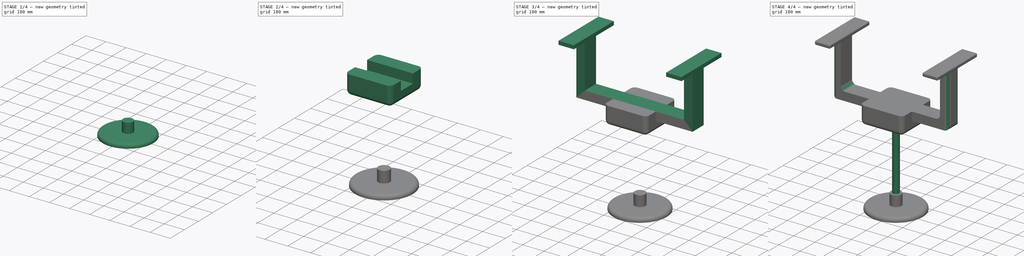
[diagram: build sequence overview — one tinted view per stage of 4, left to right]
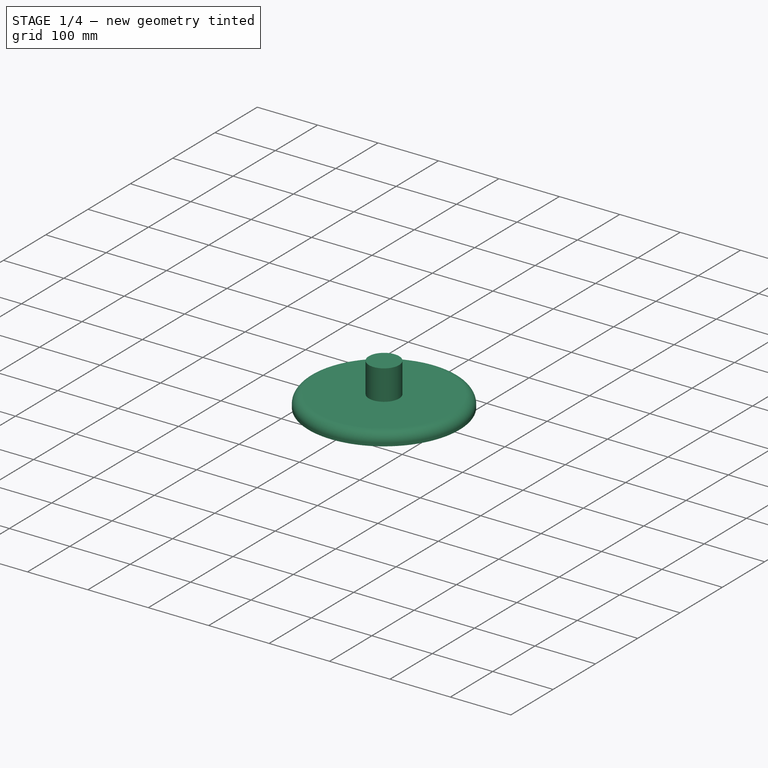
[diagram: stage 1 of 4 — iso view after this stage's code; geometry added in this stage tinted green]
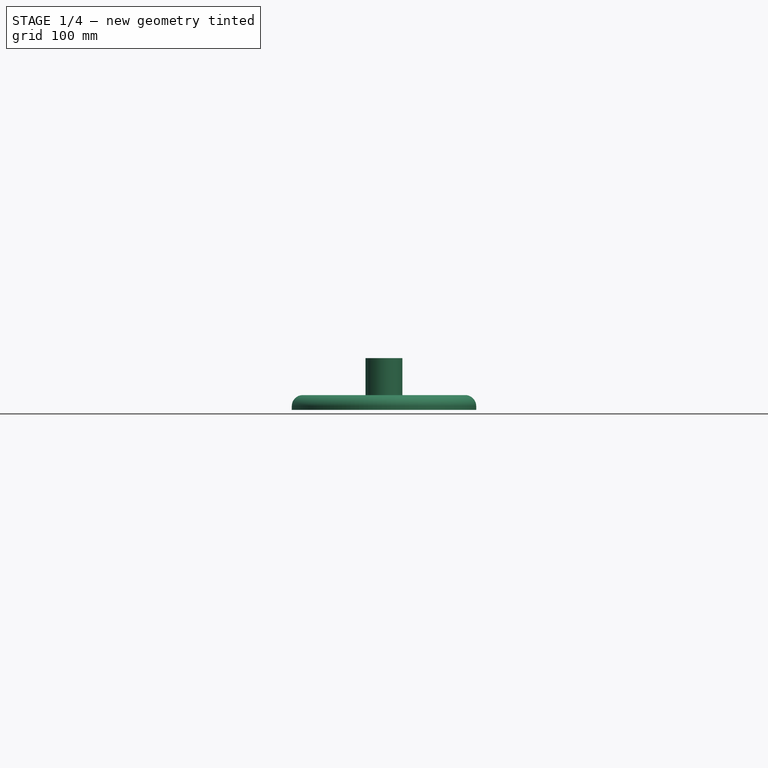
[diagram: stage 1 of 4 — front view after this stage's code; geometry added in this stage tinted green]
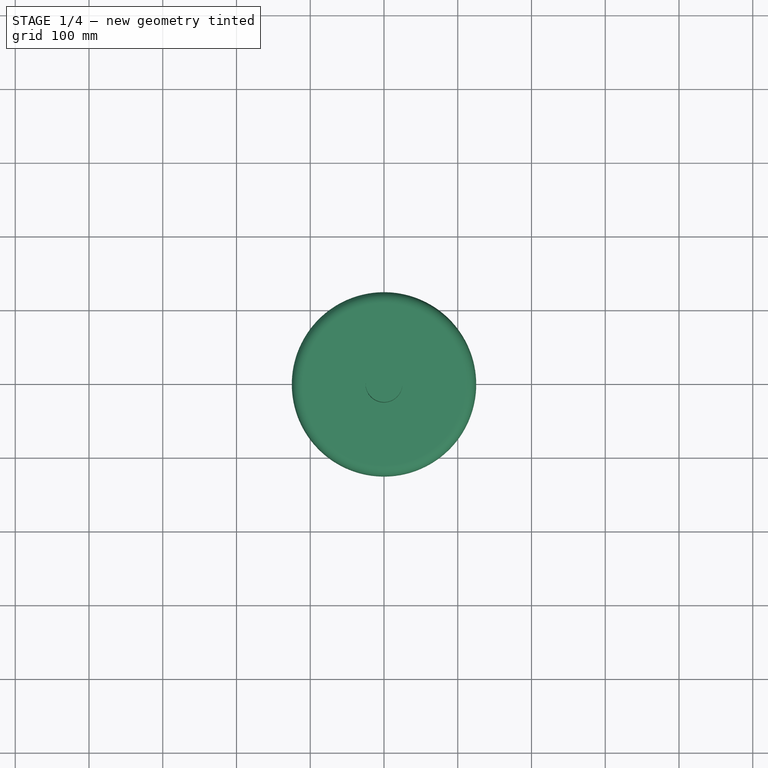
[diagram: stage 1 of 4 — top view after this stage's code; geometry added in this stage tinted green]
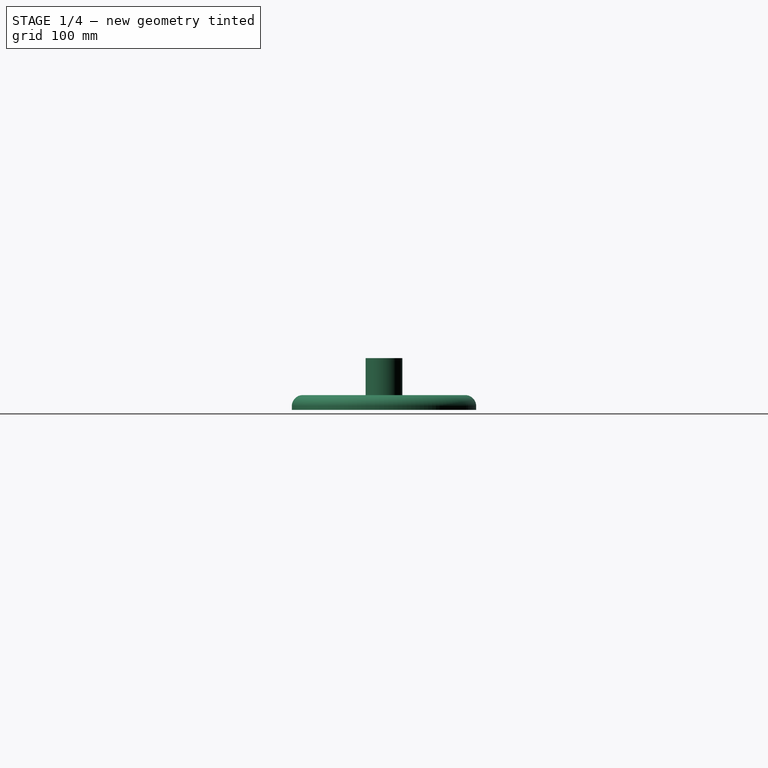
[diagram: stage 1 of 4 — right view after this stage's code; geometry added in this stage tinted green]
FCSTD DOCUMENT  (FreeCAD 1.0R39109 (Git))
Label: chair02_004
License: All rights reserved
LicenseURL: https://en.wikipedia.org/wiki/All_rights_reserved
objects: Sketcher::SketchObject×8, PartDesign::Pad×8, PartDesign::ShapeBinder×4, PartDesign::Body×4, PartDesign::Fillet×4
note: 60 computed .brp shape members not serialized (recipe doc carries the construction recipe); baked Part::Feature solids carry a one-line shape summary decoded from their .brp

FEATURE [Sketcher::SketchObject] Sketch
  ArcFitTolerance = 1e-06
  AttachmentSupport = -> [XY_Plane]
  FullyConstrained = true
  MakeInternals = false
  MapMode = 5
  sketch-geometry (1):
    g0: Circle CenterX=0 CenterY=0 CenterZ=0 NormalX=0 NormalY=0 NormalZ=1 AngleXU=0 Radius=125
  constraints (2):
    c: Diameter(g0) = 250
    c: Coincident(g0,g-1)
FEATURE [PartDesign::Pad] Pad
  Direction = (0,0,1)
  Length = 20
  Length2 = 10
  Profile = -> Sketch
  ReferenceAxis = -> Sketch [N_Axis]
  Refine = true
  Suppressed = false
  Type = 0
FEATURE [Sketcher::SketchObject] Sketch001
  ArcFitTolerance = 1e-06
  AttachmentSupport = -> [Pad]
  FullyConstrained = true
  MakeInternals = false
  MapMode = 5
  Placement = pos=(0,0,20) rot=(0,0,1;0rad)
  sketch-geometry (1):
    g0: Circle CenterX=0 CenterY=0 CenterZ=0 NormalX=0 NormalY=0 NormalZ=1 AngleXU=0 Radius=25
  constraints (2):
    c: Diameter(g0) = 50
    c: Coincident(g0,g-1)
FEATURE [PartDesign::Pad] Pad001
  BaseFeature = -> Pad
  Direction = (0,0,1)
  Length = 50
  Length2 = 10
  Profile = -> Sketch001
  ReferenceAxis = -> Sketch001 [N_Axis]
  Refine = true
  Suppressed = false
  Type = 0
FEATURE [PartDesign::Body] Body002  label="Body3"
  AllowCompound = false
  Group = -> [CopyPad002,Sketch003,Pad003,Sketch009,Pad009,Fillet005]
  Origin = -> Origin002
  Tip = -> Fillet005
FEATURE [PartDesign::Fillet] Fillet006
  Base = -> Pad001 [Edge3]
  BaseFeature = -> Pad001
  Radius = 15
  Refine = true
  SupportTransform = false
  Suppressed = false
  UseAllEdges = false
FEATURE [PartDesign::Body] Body  label="Body1"
  AllowCompound = false
  Group = -> [Sketch,Pad,Sketch001,Pad001,Fillet006]
  Origin = -> Origin
  Tip = -> Fillet006
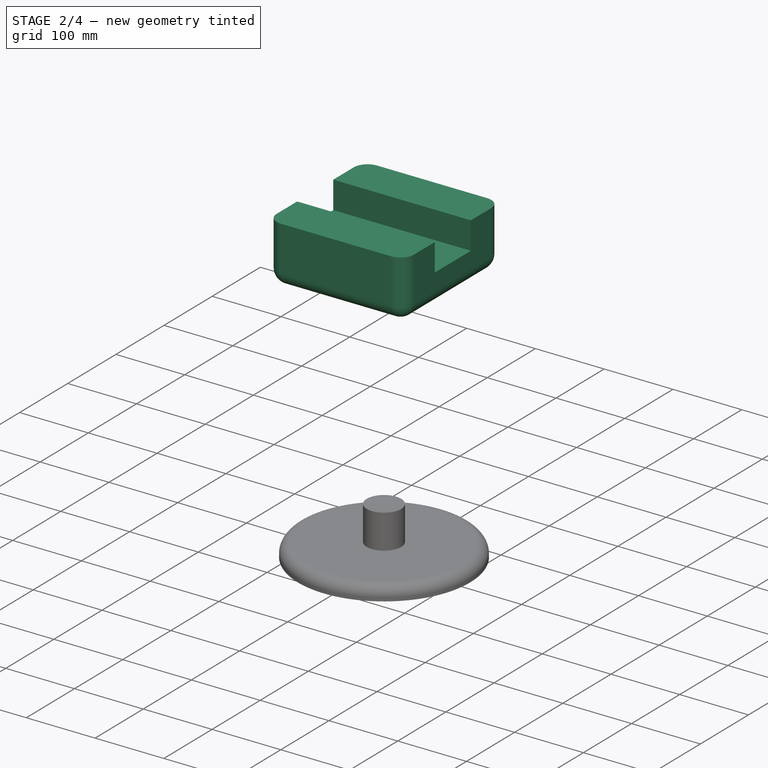
[diagram: stage 2 of 4 — iso view after this stage's code; geometry added in this stage tinted green]
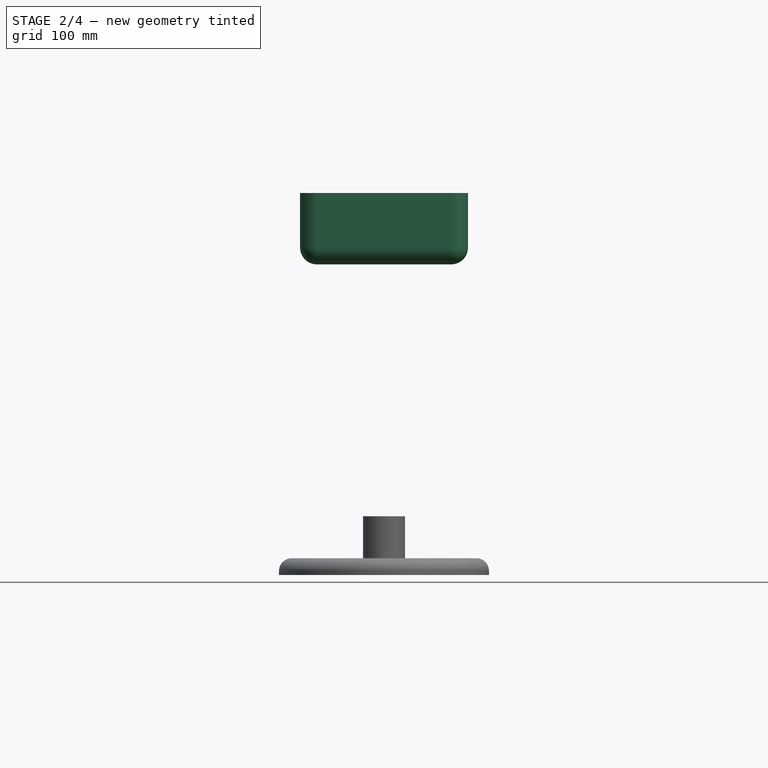
[diagram: stage 2 of 4 — front view after this stage's code; geometry added in this stage tinted green]
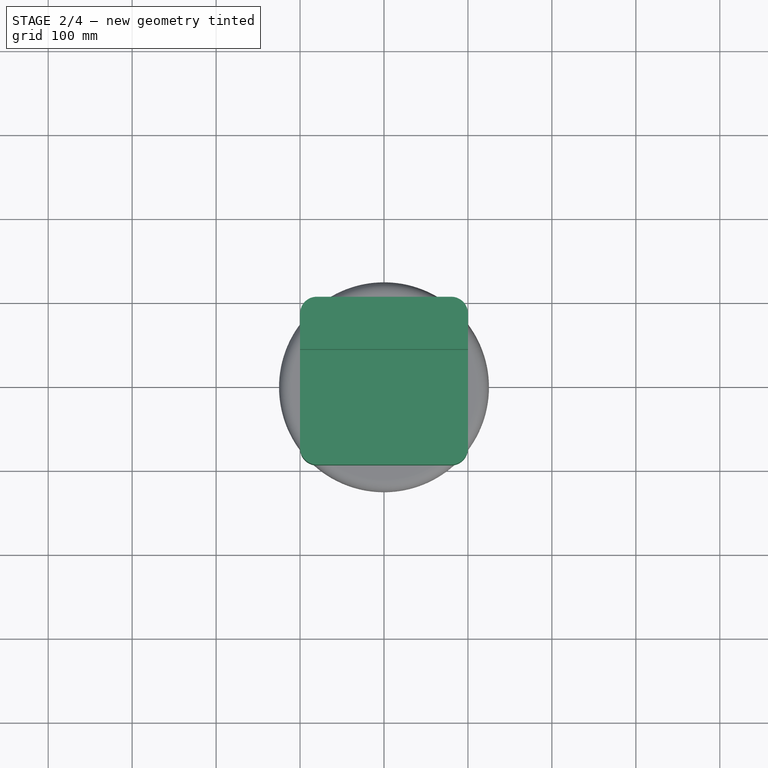
[diagram: stage 2 of 4 — top view after this stage's code; geometry added in this stage tinted green]
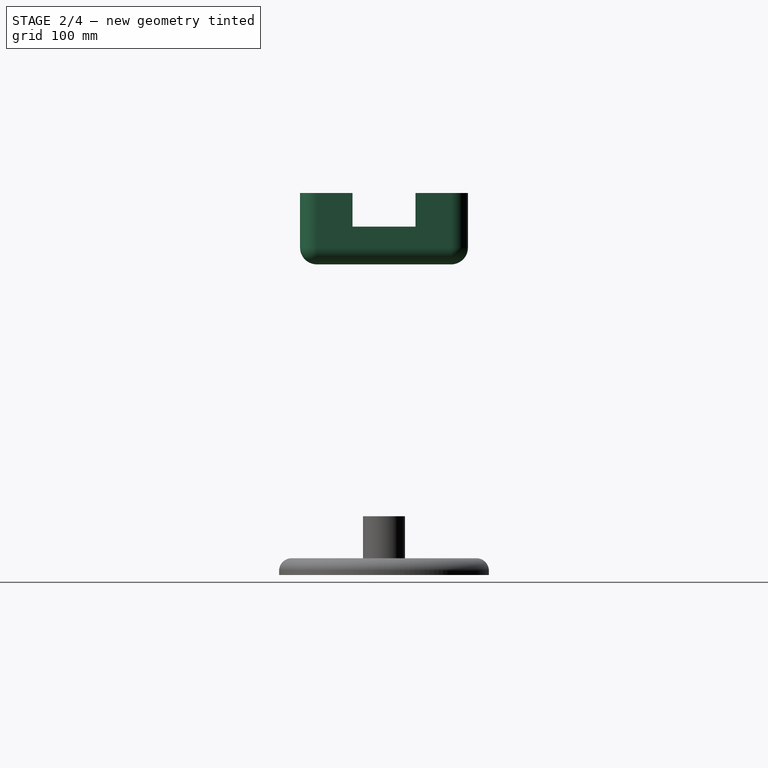
[diagram: stage 2 of 4 — right view after this stage's code; geometry added in this stage tinted green]
FEATURE [PartDesign::Body] Body001  label="Body2"
  AllowCompound = false
  Group = -> [CopyPad001,Sketch002,Pad002]
  Origin = -> Origin001
  Tip = -> Pad002
FEATURE [PartDesign::ShapeBinder] CopyPad002  label="Body3_Sketch_Plane"
  Placement = pos=(0,0,300) rot=(0,0,1;0rad)
  TraceSupport = false
FEATURE [Sketcher::SketchObject] Sketch003
  ArcFitTolerance = 1e-06
  AttachmentSupport = -> [CopyPad002]
  FullyConstrained = true
  MakeInternals = false
  MapMode = 5
  Placement = pos=(0,0,370) rot=(0,0,1;0rad)
  sketch-geometry (5):
    g0: LineSegment StartX=-100 StartY=-100 StartZ=0 EndX=100 EndY=-100 EndZ=0
    g1: LineSegment StartX=100 StartY=-100 StartZ=0 EndX=100 EndY=100 EndZ=0
    g2: LineSegment StartX=100 StartY=100 StartZ=0 EndX=-100 EndY=100 EndZ=0
    g3: LineSegment StartX=-100 StartY=100 StartZ=0 EndX=-100 EndY=-100 EndZ=0
    g4: GeomPoint [constr] X=0 Y=0 Z=0
  constraints (12):
    c: Coincident(g0,g1)
    c: Coincident(g1,g2)
    c: Coincident(g2,g3)
    c: Coincident(g3,g0)
    c: Horizontal(g0)
    c: Horizontal(g2)
    c: Vertical(g1)
    c: Vertical(g3)
    c: Symmetric(g2,g0,g4)
    c: Distance(g1,g3) = 200
    c: Distance(g0,g2) = 200
    c: Coincident(g4,g-1)
FEATURE [PartDesign::Pad] Pad003
  Direction = (0,0,1)
  Length = 45
  Length2 = 10
  Placement = pos=(0,0,300) rot=(0,0,1;0rad)
  Profile = -> Sketch003
  ReferenceAxis = -> Sketch003 [N_Axis]
  Refine = true
  Suppressed = false
  Type = 0
FEATURE [PartDesign::ShapeBinder] CopyPad006  label="Body5_Sketch_Plane"
  Placement = pos=(0,0,45) rot=(0,0,1;0rad)
  TraceSupport = false
FEATURE [Sketcher::SketchObject] Sketch009
  ArcFitTolerance = 1e-06
  AttachmentSupport = -> [Pad003]
  ExternalGeometry = -> [Pad003]
  FullyConstrained = true
  MakeInternals = false
  MapMode = 5
  Placement = pos=(0,0,415) rot=(0,0,1;0rad)
  sketch-geometry (8):
    g0: LineSegment StartX=-100 StartY=100 StartZ=0 EndX=-100 EndY=37.5 EndZ=0
    g1: LineSegment StartX=-100 StartY=37.5 StartZ=0 EndX=100 EndY=37.5 EndZ=0
    g2: LineSegment StartX=100 StartY=37.5 StartZ=0 EndX=100 EndY=100 EndZ=0
    g3: LineSegment StartX=100 StartY=100 StartZ=0 EndX=-100 EndY=100 EndZ=0
    g4: LineSegment StartX=100 StartY=-100 StartZ=0 EndX=100 EndY=-37.5 EndZ=0
    g5: LineSegment StartX=100 StartY=-37.5 StartZ=0 EndX=-100 EndY=-37.5 EndZ=0
    g6: LineSegment StartX=-100 StartY=-37.5 StartZ=0 EndX=-100 EndY=-100 EndZ=0
    g7: LineSegment StartX=-100 StartY=-100 StartZ=0 EndX=100 EndY=-100 EndZ=0
  constraints (21):
    c: Coincident(g0,g1)
    c: Coincident(g1,g2)
    c: Coincident(g2,g3)
    c: Coincident(g3,g0)
    c: Vertical(g0)
    c: Vertical(g2)
    c: Horizontal(g1)
    c: Horizontal(g3)
    c: Coincident(g0,g-3)
    c: PointOnObject(g1,g-4)
    c: Coincident(g4,g5)
    c: Coincident(g5,g6)
    c: Coincident(g6,g7)
    c: Coincident(g7,g4)
    c: Vertical(g6)
    c: Horizontal(g5)
    c: Horizontal(g7)
    c: Coincident(g4,g-4)
    c: PointOnObject(g5,g-3)
    c: DistanceY(g4,g1) = 75
    c: Symmetric(g1,g4,g-1)
FEATURE [PartDesign::Pad] Pad009
  BaseFeature = -> Pad003
  Direction = (0,0,1)
  Length = 40
  Length2 = 10
  Placement = pos=(0,0,300) rot=(0,0,1;0rad)
  Profile = -> Sketch009
  ReferenceAxis = -> Sketch009 [N_Axis]
  Refine = true
  Suppressed = false
  Type = 0
FEATURE [PartDesign::Body] Body003  label="Body4"
  AllowCompound = false
  Group = -> [CopyPad003,Sketch004,Pad004,Sketch005,Pad005,Sketch006,Pad006,Fillet003,Fillet004]
  Origin = -> Origin003
  Tip = -> Fillet004
FEATURE [PartDesign::Fillet] Fillet005
  Base = -> Pad009 [Edge7,Edge5,Edge24,Edge23,Edge1,Edge2,Edge4,Edge3]
  BaseFeature = -> Pad009
  Placement = pos=(0,0,300) rot=(0,0,1;0rad)
  Radius = 20
  Refine = true
  SupportTransform = false
  Suppressed = false
  UseAllEdges = false
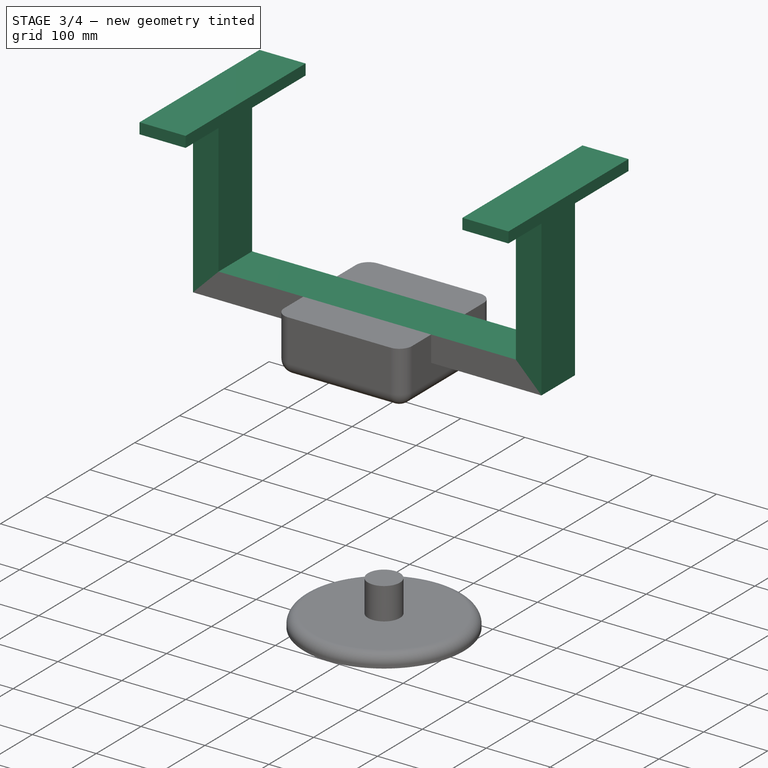
[diagram: stage 3 of 4 — iso view after this stage's code; geometry added in this stage tinted green]
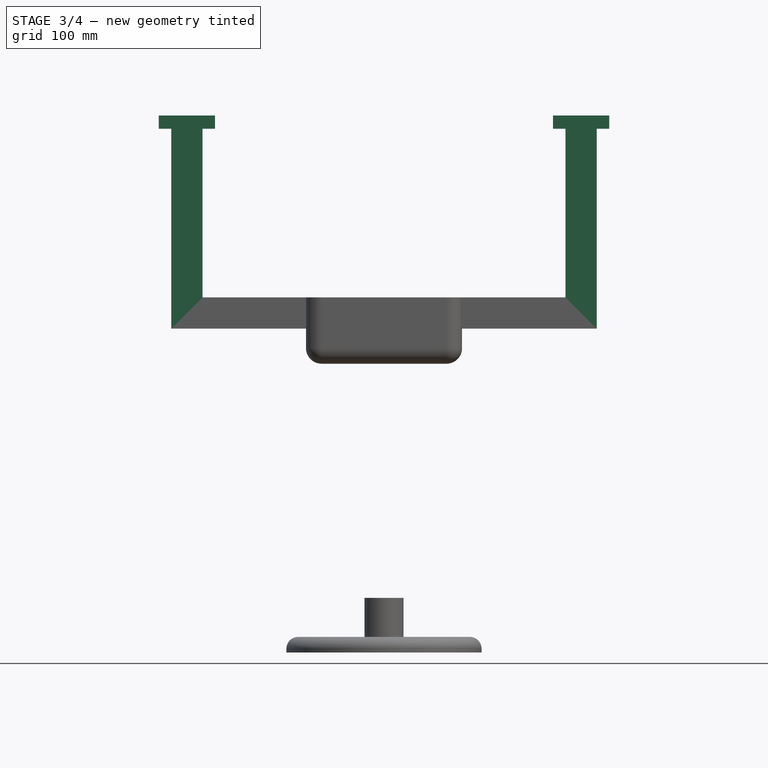
[diagram: stage 3 of 4 — front view after this stage's code; geometry added in this stage tinted green]
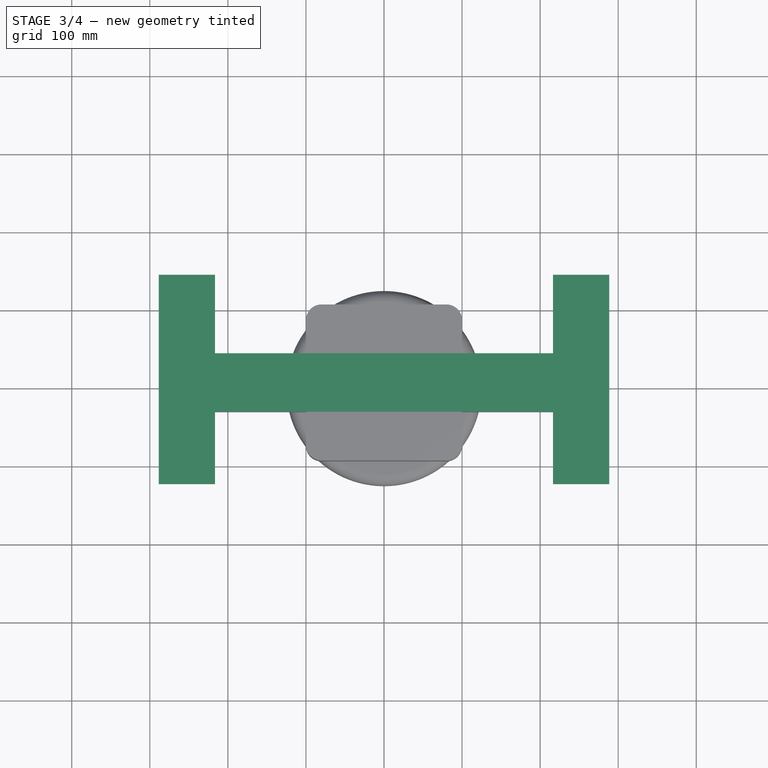
[diagram: stage 3 of 4 — top view after this stage's code; geometry added in this stage tinted green]
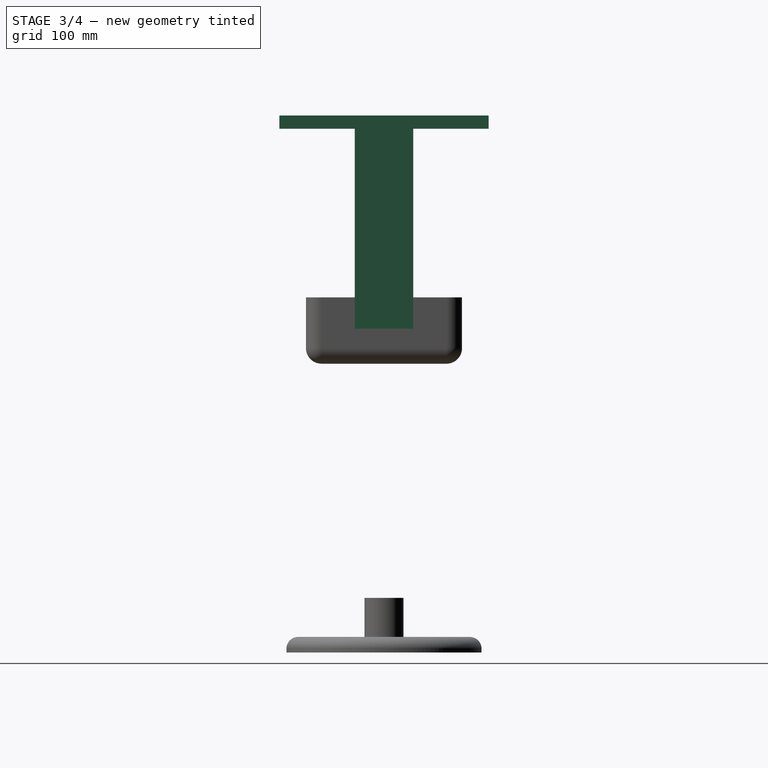
[diagram: stage 3 of 4 — right view after this stage's code; geometry added in this stage tinted green]
FEATURE [PartDesign::ShapeBinder] CopyPad003  label="Body4_Sketch_Plane"
  Placement = pos=(0,0,45) rot=(0,0,1;0rad)
  TraceSupport = false
FEATURE [Sketcher::SketchObject] Sketch004
  ArcFitTolerance = 1e-06
  AttachmentSupport = -> [CopyPad003]
  FullyConstrained = true
  MakeInternals = false
  MapMode = 5
  Placement = pos=(0,0,415) rot=(0,0,1;0rad)
  sketch-geometry (5):
    g0: LineSegment StartX=-272.5 StartY=-37.5 StartZ=0 EndX=272.5 EndY=-37.5 EndZ=0
    g1: LineSegment StartX=272.5 StartY=-37.5 StartZ=0 EndX=272.5 EndY=37.5 EndZ=0
    g2: LineSegment StartX=272.5 StartY=37.5 StartZ=0 EndX=-272.5 EndY=37.5 EndZ=0
    g3: LineSegment StartX=-272.5 StartY=37.5 StartZ=0 EndX=-272.5 EndY=-37.5 EndZ=0
    g4: GeomPoint [constr] X=0 Y=0 Z=0
  constraints (12):
    c: Coincident(g0,g1)
    c: Coincident(g1,g2)
    c: Coincident(g2,g3)
    c: Coincident(g3,g0)
    c: Horizontal(g0)
    c: Horizontal(g2)
    c: Vertical(g1)
    c: Vertical(g3)
    c: Symmetric(g2,g0,g4)
    c: Distance(g1,g3) = 545
    c: Distance(g0,g2) = 75
    c: Coincident(g4,g-1)
FEATURE [PartDesign::Pad] Pad004
  Direction = (0,0,1)
  Length = 40
  Length2 = 10
  Placement = pos=(0,0,45) rot=(0,0,1;0rad)
  Profile = -> Sketch004
  ReferenceAxis = -> Sketch004 [N_Axis]
  Refine = true
  Suppressed = false
  Type = 0
FEATURE [Sketcher::SketchObject] Sketch005
  ArcFitTolerance = 1e-06
  AttachmentSupport = -> [Pad004]
  ExternalGeometry = -> [Pad004]
  FullyConstrained = true
  MakeInternals = false
  MapMode = 5
  Placement = pos=(0,0,455) rot=(0,0,1;0rad)
  sketch-geometry (8):
    g0: LineSegment StartX=-272.5 StartY=37.5 StartZ=0 EndX=-272.5 EndY=-37.5 EndZ=0
    g1: LineSegment StartX=-272.5 StartY=-37.5 StartZ=0 EndX=-232.5 EndY=-37.5 EndZ=0
    g2: LineSegment StartX=-232.5 StartY=-37.5 StartZ=0 EndX=-232.5 EndY=37.5 EndZ=0
    g3: LineSegment StartX=-232.5 StartY=37.5 StartZ=0 EndX=-272.5 EndY=37.5 EndZ=0
    g4: LineSegment StartX=272.5 StartY=37.5 StartZ=0 EndX=232.5 EndY=37.5 EndZ=0
    g5: LineSegment StartX=232.5 StartY=37.5 StartZ=0 EndX=232.5 EndY=-37.5 EndZ=0
    g6: LineSegment StartX=232.5 StartY=-37.5 StartZ=0 EndX=272.5 EndY=-37.5 EndZ=0
    g7: LineSegment StartX=272.5 StartY=-37.5 StartZ=0 EndX=272.5 EndY=37.5 EndZ=0
  constraints (22):
    c: Coincident(g0,g1)
    c: Coincident(g1,g2)
    c: Coincident(g2,g3)
    c: Coincident(g3,g0)
    c: Vertical(g0)
    c: Vertical(g2)
    c: Horizontal(g1)
    c: Horizontal(g3)
    c: Coincident(g0,g-3)
    c: PointOnObject(g1,g-4)
    c: DistanceX(g3,g3) = 40
    c: Coincident(g4,g5)
    c: Coincident(g5,g6)
    c: Coincident(g6,g7)
    c: Coincident(g7,g4)
    c: Horizontal(g4)
    c: Horizontal(g6)
    c: Vertical(g5)
    c: Vertical(g7)
    c: Coincident(g4,g-3)
    c: PointOnObject(g5,g-4)
    c: Equal(g4,g3)
FEATURE [PartDesign::Pad] Pad005
  BaseFeature = -> Pad004
  Direction = (0,0,1)
  Length = 216
  Length2 = 10
  Placement = pos=(0,0,45) rot=(0,0,1;0rad)
  Profile = -> Sketch005
  ReferenceAxis = -> Sketch005 [N_Axis]
  Refine = true
  Suppressed = false
  Type = 0
FEATURE [Sketcher::SketchObject] Sketch006
  ArcFitTolerance = 1e-06
  AttachmentSupport = -> [Pad005]
  ExternalGeometry = -> [Pad005]
  FullyConstrained = true
  MakeInternals = false
  MapMode = 5
  Placement = pos=(0,0,671) rot=(0,0,1;0rad)
  sketch-geometry (16):
    g0: LineSegment StartX=-288.5 StartY=134 StartZ=0 EndX=-288.5 EndY=-134 EndZ=0
    g1: LineSegment StartX=-288.5 StartY=-134 StartZ=0 EndX=-216.5 EndY=-134 EndZ=0
    g2: LineSegment StartX=-216.5 StartY=-134 StartZ=0 EndX=-216.5 EndY=134 EndZ=0
    g3: LineSegment StartX=-216.5 StartY=134 StartZ=0 EndX=-288.5 EndY=134 EndZ=0
    g4: LineSegment StartX=216.5 StartY=134 StartZ=0 EndX=216.5 EndY=-134 EndZ=0
    g5: LineSegment StartX=216.5 StartY=-134 StartZ=0 EndX=288.5 EndY=-134 EndZ=0
    g6: LineSegment StartX=288.5 StartY=-134 StartZ=0 EndX=288.5 EndY=134 EndZ=0
    g7: LineSegment StartX=288.5 StartY=134 StartZ=0 EndX=216.5 EndY=134 EndZ=0
    g8: LineSegment [constr] StartX=-272.5 StartY=37.5 StartZ=0 EndX=-232.5 EndY=-37.5 EndZ=0
    g9: LineSegment [constr] StartX=-252.5 StartY=0 StartZ=0 EndX=-272.5 EndY=-37.5 EndZ=0
    g10: LineSegment [constr] StartX=232.5 StartY=37.5 StartZ=0 EndX=272.5 EndY=-37.5 EndZ=0
    g11: LineSegment [constr] StartX=272.5 StartY=37.5 StartZ=0 EndX=252.5 EndY=0 EndZ=0
    g12: LineSegment [constr] StartX=-216.5 StartY=134 StartZ=0 EndX=-288.5 EndY=-134 EndZ=0
    g13: LineSegment [constr] StartX=-288.5 StartY=134 StartZ=0 EndX=-252.5 EndY=0 EndZ=0
    g14: LineSegment [constr] StartX=216.5 StartY=134 StartZ=0 EndX=288.5 EndY=-134 EndZ=0
    g15: LineSegment [constr] StartX=288.5 StartY=134 StartZ=0 EndX=252.5 EndY=0 EndZ=0
  constraints (38):
    c: Coincident(g0,g1)
    c: Coincident(g1,g2)
    c: Coincident(g2,g3)
    c: Coincident(g3,g0)
    c: Vertical(g0)
    c: Vertical(g2)
    c: Horizontal(g1)
    c: Horizontal(g3)
    c: Coincident(g4,g5)
    c: Coincident(g5,g6)
    c: Coincident(g6,g7)
    c: Coincident(g7,g4)
    c: Vertical(g4)
    c: Vertical(g6)
    c: Horizontal(g5)
    c: Horizontal(g7)
    c: Equal(g7,g3)
    c: Equal(g2,g4)
    c: DistanceX(g3,g3) = 72
    c: Coincident(g8,g-4)
    c: Coincident(g8,g-3)
    c: Coincident(g9,g-4)
    c: Coincident(g10,g-5)
    c: Coincident(g10,g-6)
    c: Coincident(g11,g-6)
    c: Symmetric(g10,g10,g11)
    c: Symmetric(g8,g8,g9)
    c: Coincident(g12,g2)
    c: Coincident(g12,g0)
    c: Coincident(g13,g0)
    c: Symmetric(g12,g12,g13)
    c: Coincident(g9,g13)
    c: Coincident(g14,g4)
    c: Coincident(g14,g5)
    c: Coincident(g15,g6)
    c: Symmetric(g14,g14,g15)
    c: Coincident(g15,g11)
    c: DistanceY(g2,g2) = 268
FEATURE [PartDesign::Pad] Pad006
  BaseFeature = -> Pad005
  Direction = (0,0,1)
  Length = 17
  Length2 = 10
  Placement = pos=(0,0,45) rot=(0,0,1;0rad)
  Profile = -> Sketch006
  ReferenceAxis = -> Sketch006 [N_Axis]
  Refine = true
  Suppressed = false
  Type = 0
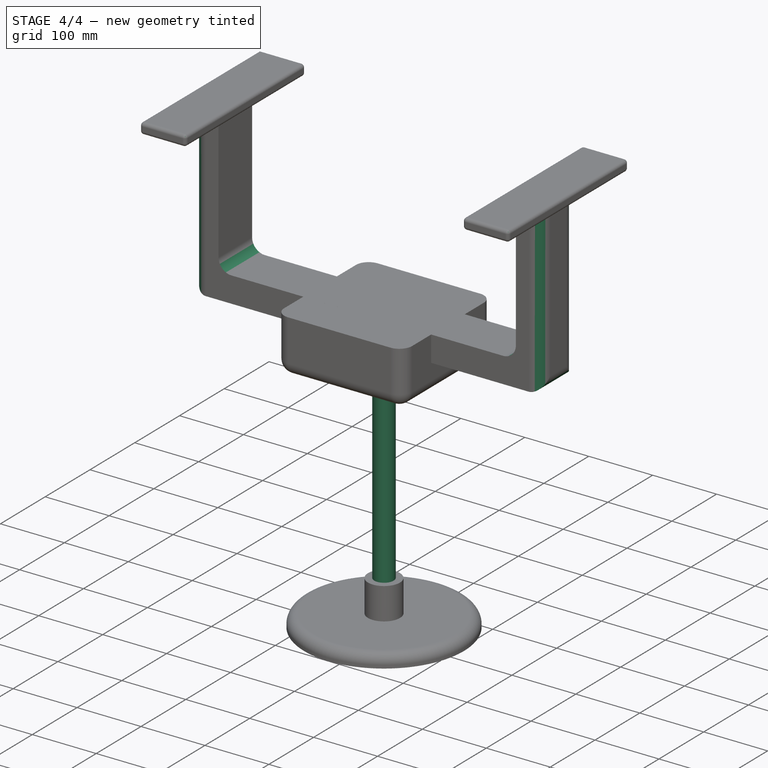
[diagram: stage 4 of 4 — iso view after this stage's code; geometry added in this stage tinted green]
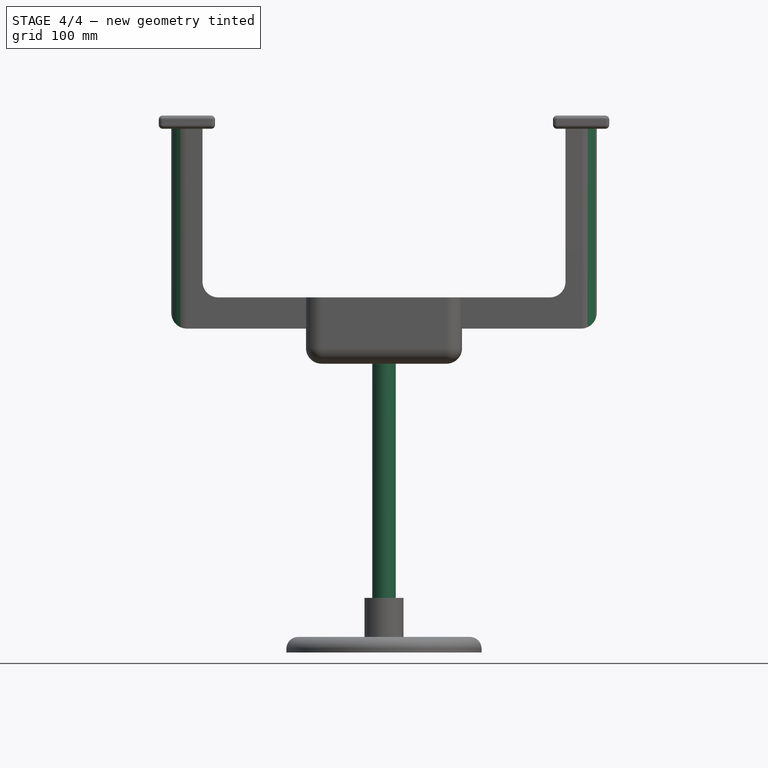
[diagram: stage 4 of 4 — front view after this stage's code; geometry added in this stage tinted green]
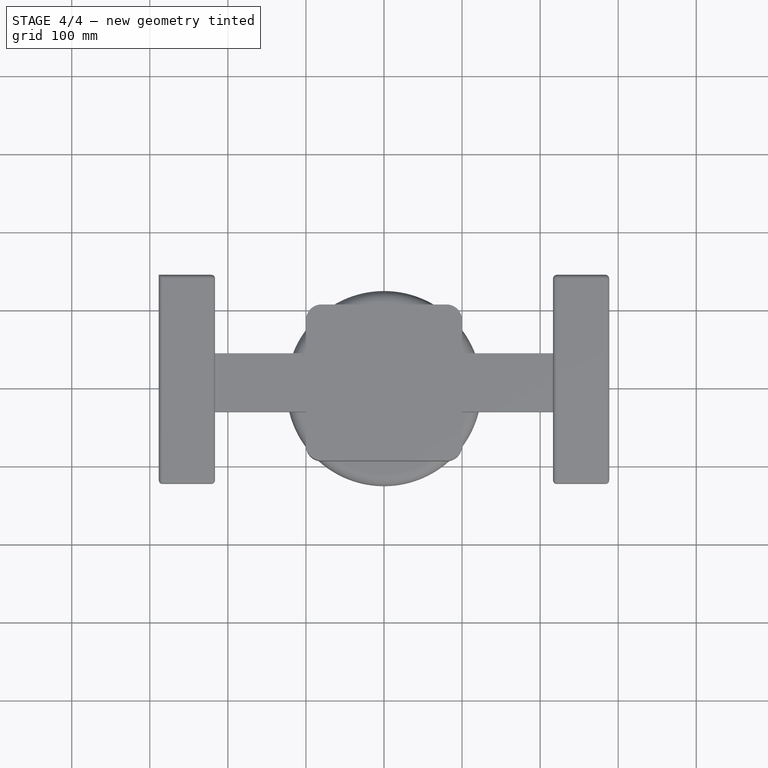
[diagram: stage 4 of 4 — top view after this stage's code; geometry added in this stage tinted green]
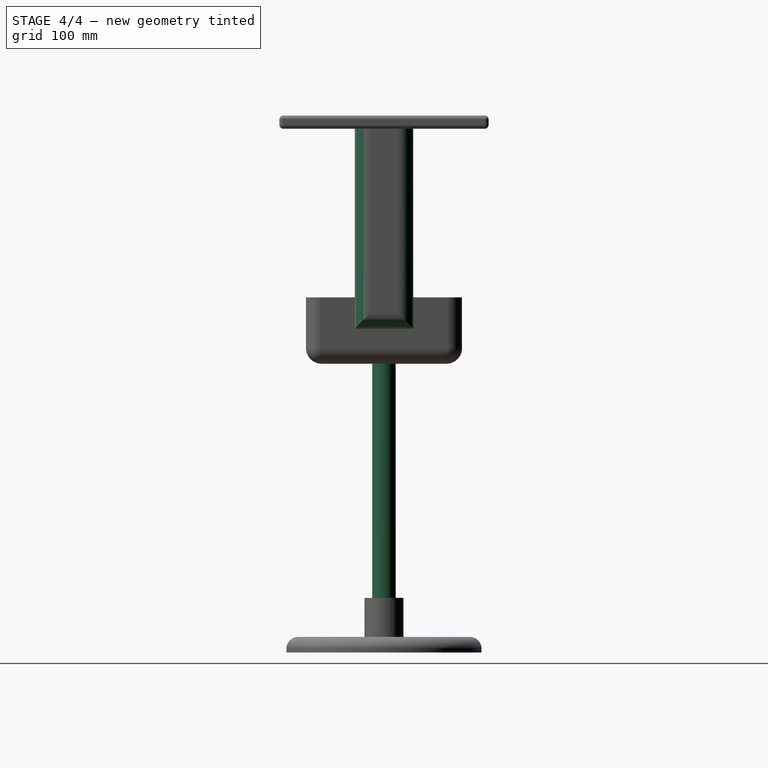
[diagram: stage 4 of 4 — right view after this stage's code; geometry added in this stage tinted green]
FEATURE [PartDesign::ShapeBinder] CopyPad001  label="Body2_Sketch_P.lane"
  Placement = pos=(0,0,50) rot=(0,0,1;0rad)
  TraceSupport = false
FEATURE [Sketcher::SketchObject] Sketch002
  ArcFitTolerance = 1e-06
  AttachmentSupport = -> [CopyPad001]
  FullyConstrained = true
  MakeInternals = false
  MapMode = 5
  Placement = pos=(0,0,70) rot=(0,0,1;0rad)
  sketch-geometry (1):
    g0: Circle CenterX=0 CenterY=0 CenterZ=0 NormalX=0 NormalY=0 NormalZ=1 AngleXU=0 Radius=15
  constraints (2):
    c: Diameter(g0) = 30
    c: Coincident(g0,g-1)
FEATURE [PartDesign::Pad] Pad002
  Direction = (0,0,1)
  Length = 300
  Length2 = 10
  Placement = pos=(0,0,50) rot=(0,0,1;0rad)
  Profile = -> Sketch002
  ReferenceAxis = -> Sketch002 [N_Axis]
  Refine = true
  Suppressed = false
  Type = 0
FEATURE [PartDesign::Fillet] Fillet003
  Base = -> Pad006 [Edge43,Edge48,Edge35,Edge40,Edge39,Edge37,Edge45,Edge47,Edge34,Edge38,Edge36,Edge33,Edge24,Edge22,Edge23,Edge21,Edge29,Edge31,Edge42,Edge46,Edge44,Edge32,Edge30]
  BaseFeature = -> Pad006
  Placement = pos=(0,0,45) rot=(0,0,1;0rad)
  Radius = 5
  Refine = true
  SupportTransform = false
  Suppressed = false
  UseAllEdges = false
FEATURE [PartDesign::Fillet] Fillet004
  Base = -> Fillet003 [Edge57,Edge58,Edge36,Edge28,Edge22,Edge29,Edge27,Edge31]
  BaseFeature = -> Fillet003
  Placement = pos=(0,0,45) rot=(0,0,1;0rad)
  Radius = 20
  Refine = true
  SupportTransform = false
  Suppressed = false
  UseAllEdges = false
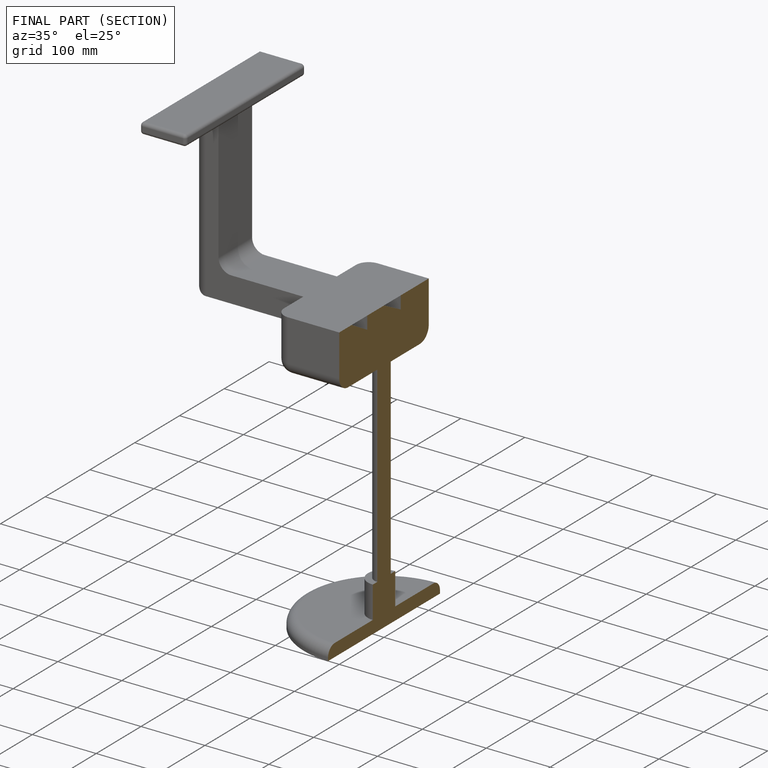
[diagram: finished part — half-section view (interior)]
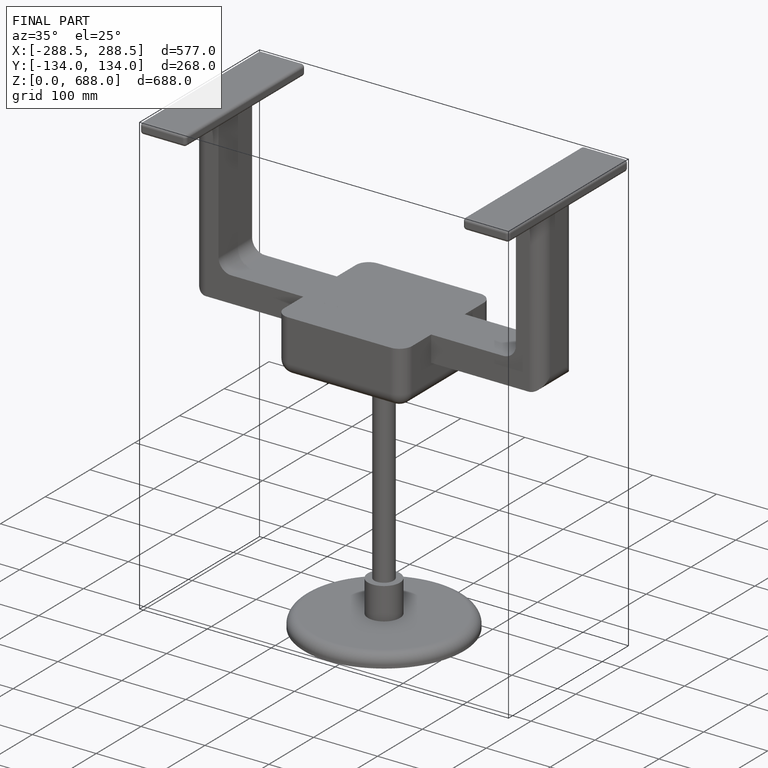
[diagram: finished part — iso view with bounding-box wireframe]
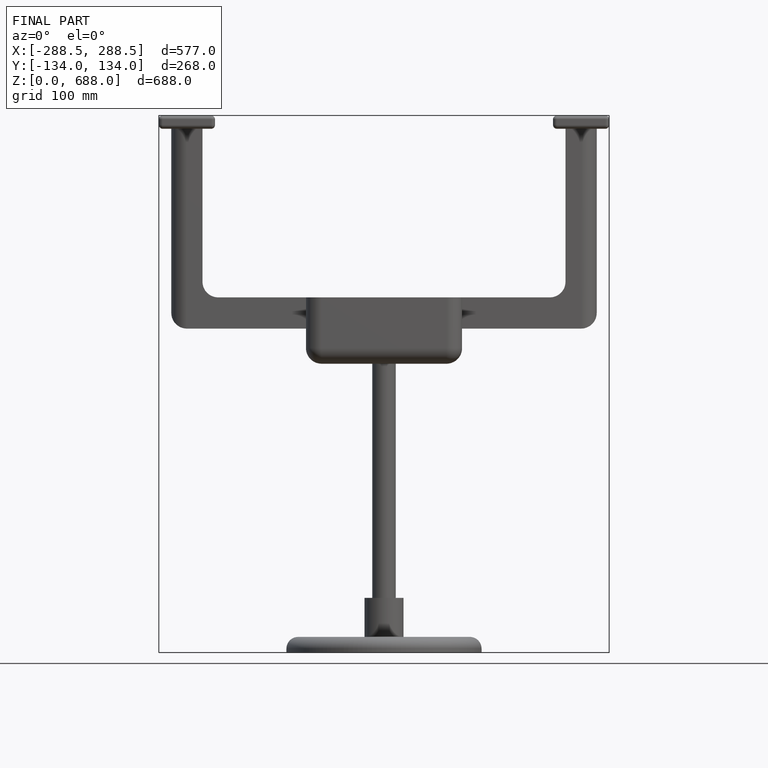
[diagram: finished part — front view with bounding-box wireframe]
